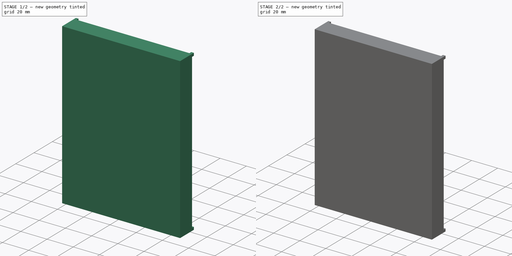
[diagram: build sequence overview — one tinted view per stage of 2, left to right]
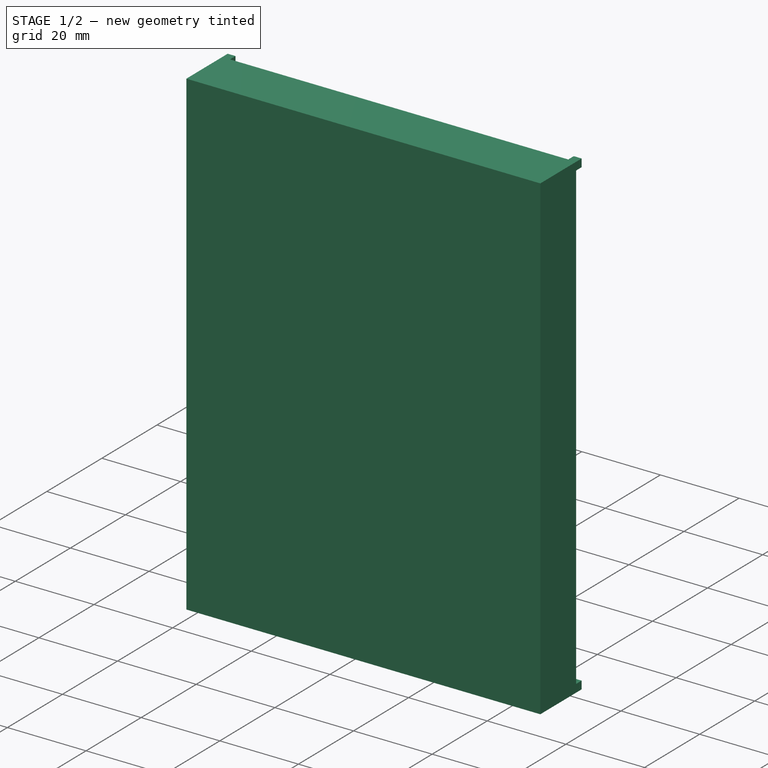
[diagram: stage 1 of 2 — iso view after this stage's code; geometry added in this stage tinted green]
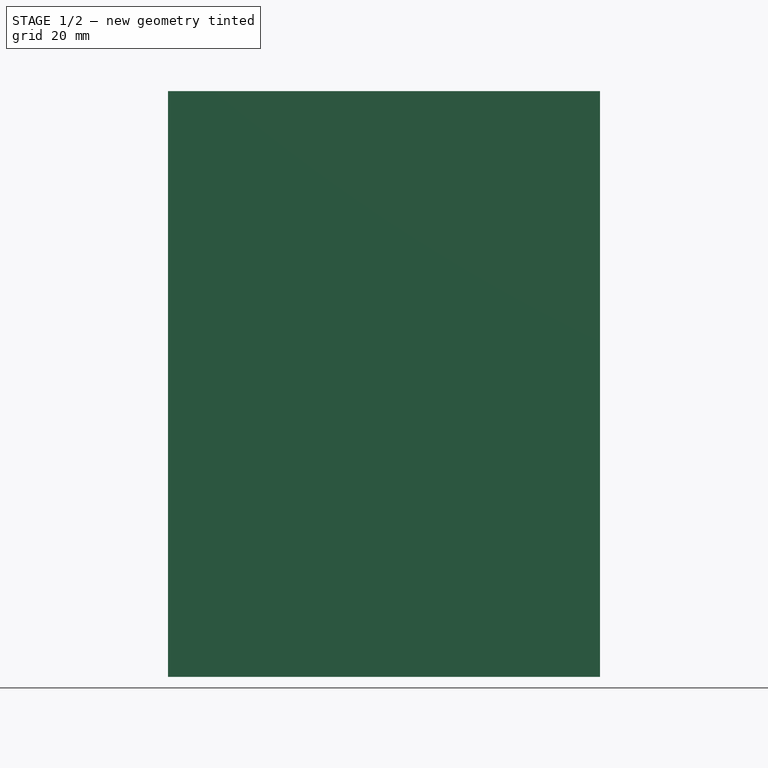
[diagram: stage 1 of 2 — front view after this stage's code; geometry added in this stage tinted green]
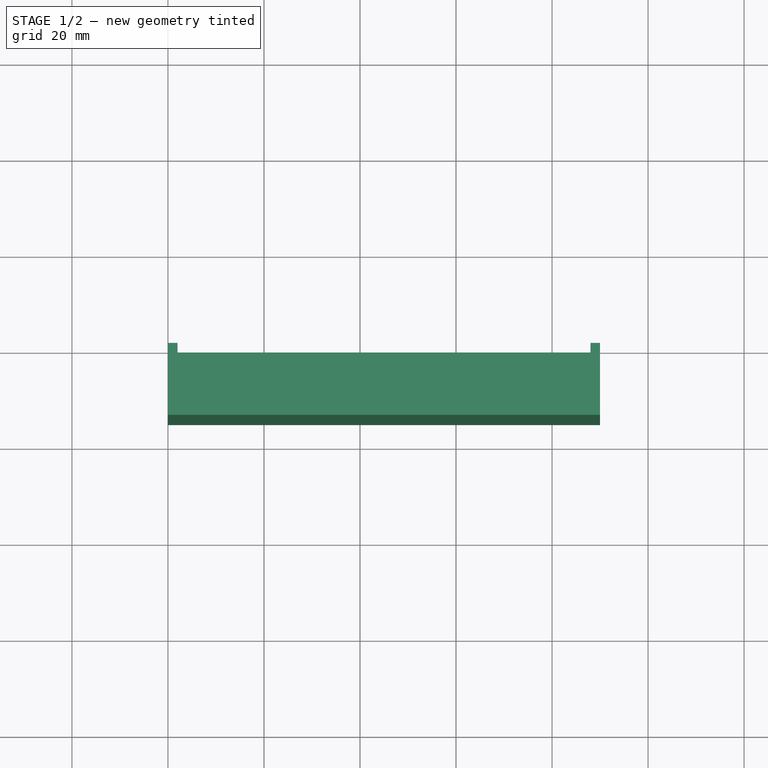
[diagram: stage 1 of 2 — top view after this stage's code; geometry added in this stage tinted green]
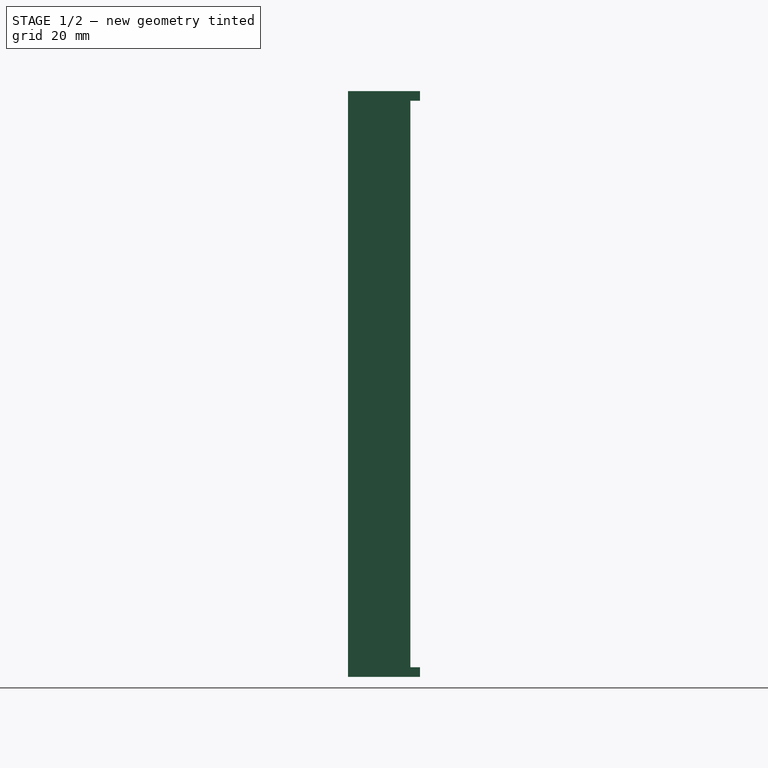
[diagram: stage 1 of 2 — right view after this stage's code; geometry added in this stage tinted green]
FCSTD DOCUMENT  (FreeCAD 1.0R39285 (Git))
Label: DisplaySingle
License: All rights reserved
LicenseURL: https://en.wikipedia.org/wiki/All_rights_reserved
objects: Sketcher::SketchObject×3, PartDesign::Pad×2, PartDesign::Pocket×1, PartDesign::Body×1
note: 16 computed .brp shape members not serialized (recipe doc carries the construction recipe); baked Part::Feature solids carry a one-line shape summary decoded from their .brp

FEATURE [Sketcher::SketchObject] Sketch
  ArcFitTolerance = 1e-06
  AttachmentSupport = -> [XZ_Plane]
  FullyConstrained = true
  MakeInternals = false
  MapMode = 5
  Placement = pos=(0,0,0) rot=(1,0,0;1.5708rad)
  sketch-geometry (4):
    g0: LineSegment StartX=0 StartY=0 StartZ=0 EndX=90 EndY=0 EndZ=0
    g1: LineSegment StartX=90 StartY=0 StartZ=0 EndX=90 EndY=122 EndZ=0
    g2: LineSegment StartX=90 StartY=122 StartZ=0 EndX=0 EndY=122 EndZ=0
    g3: LineSegment StartX=0 StartY=122 StartZ=0 EndX=0 EndY=0 EndZ=0
  constraints (11):
    c: Coincident(g0,g1)
    c: Coincident(g1,g2)
    c: Coincident(g2,g3)
    c: Coincident(g3,g0)
    c: Horizontal(g0)
    c: Horizontal(g2)
    c: Vertical(g1)
    c: Vertical(g3)
    c: Coincident(g0,g-1)
    c: DistanceX(g2,g2) = 90
    c: DistanceY(g1,g1) = 122
FEATURE [PartDesign::Pad] Pad
  Direction = (0,-1,2e-16)
  Length = 15
  Length2 = 10
  Placement = pos=(0,0,0) rot=(1,0,0;1.5708rad)
  Profile = -> Sketch
  ReferenceAxis = -> Sketch [N_Axis]
  Refine = true
  Suppressed = false
  Type = 0
FEATURE [Sketcher::SketchObject] Sketch001
  ArcFitTolerance = 1e-06
  AttachmentSupport = -> [Pad]
  ExternalGeometry = -> [Pad]
  FullyConstrained = true
  MakeInternals = false
  MapMode = 5
  Placement = pos=(0,1.35e-14,0) rot=(-1,0,0;1.5708rad)
  sketch-geometry (12):
    g0: LineSegment StartX=88 StartY=-122 StartZ=0 EndX=88 EndY=-120 EndZ=0
    g1: LineSegment StartX=88 StartY=-120 StartZ=0 EndX=90 EndY=-120 EndZ=0
    g2: LineSegment StartX=90 StartY=-120 StartZ=0 EndX=90 EndY=-2 EndZ=0
    g3: LineSegment StartX=90 StartY=-2 StartZ=0 EndX=88 EndY=-2 EndZ=0
    g4: LineSegment StartX=88 StartY=-2 StartZ=0 EndX=88 EndY=0 EndZ=0
    g5: LineSegment StartX=88 StartY=0 StartZ=0 EndX=2 EndY=0 EndZ=0
    g6: LineSegment StartX=2 StartY=0 StartZ=0 EndX=2 EndY=-2 EndZ=0
    g7: LineSegment StartX=2 StartY=-2 StartZ=0 EndX=0 EndY=-2 EndZ=0
    g8: LineSegment StartX=0 StartY=-2 StartZ=0 EndX=0 EndY=-120 EndZ=0
    g9: LineSegment StartX=0 StartY=-120 StartZ=0 EndX=2 EndY=-120 EndZ=0
    g10: LineSegment StartX=2 StartY=-120 StartZ=0 EndX=2 EndY=-122 EndZ=0
    g11: LineSegment StartX=2 StartY=-122 StartZ=0 EndX=88 EndY=-122 EndZ=0
  constraints (36):
    c: Coincident(g1,g0)
    c: Coincident(g2,g1)
    c: Vertical(g2)
    c: Coincident(g3,g2)
    c: Coincident(g4,g3)
    c: Coincident(g5,g4)
    c: Horizontal(g5)
    c: Coincident(g6,g5)
    c: Coincident(g7,g6)
    c: Coincident(g8,g7)
    c: PointOnObject(g8,g-2)
    c: Vertical(g8)
    c: Coincident(g9,g8)
    c: Horizontal(g9)
    c: Coincident(g10,g9)
    c: Vertical(g10)
    c: Coincident(g11,g10)
    c: Coincident(g11,g0)
    c: PointOnObject(g0,g-5)
    c: Horizontal(g11)
    c: Horizontal(g1)
    c: Horizontal(g3)
    c: Horizontal(g7)
    c: Vertical(g6)
    c: Vertical(g4)
    c: PointOnObject(g4,g-1)
    c: Equal(g10,g0)
    c: Vertical(g0)
    c: PointOnObject(g1,g-4)
    c: DistanceY(g6,g6) = 2
    c: Equal(g4,g6)
    c: Equal(g6,g7)
    c: Equal(g4,g3)
    c: Equal(g3,g1)
    c: Equal(g0,g1)
    c: Equal(g9,g7)
FEATURE [PartDesign::Pocket] Pocket
  BaseFeature = -> Pad
  Direction = (0,-1,-2e-16)
  Length = 2
  Length2 = 5
  Placement = pos=(0,0,0) rot=(1,0,0;1.5708rad)
  Profile = -> Sketch001
  ReferenceAxis = -> Sketch001 [N_Axis]
  Refine = true
  Suppressed = false
  Type = 0
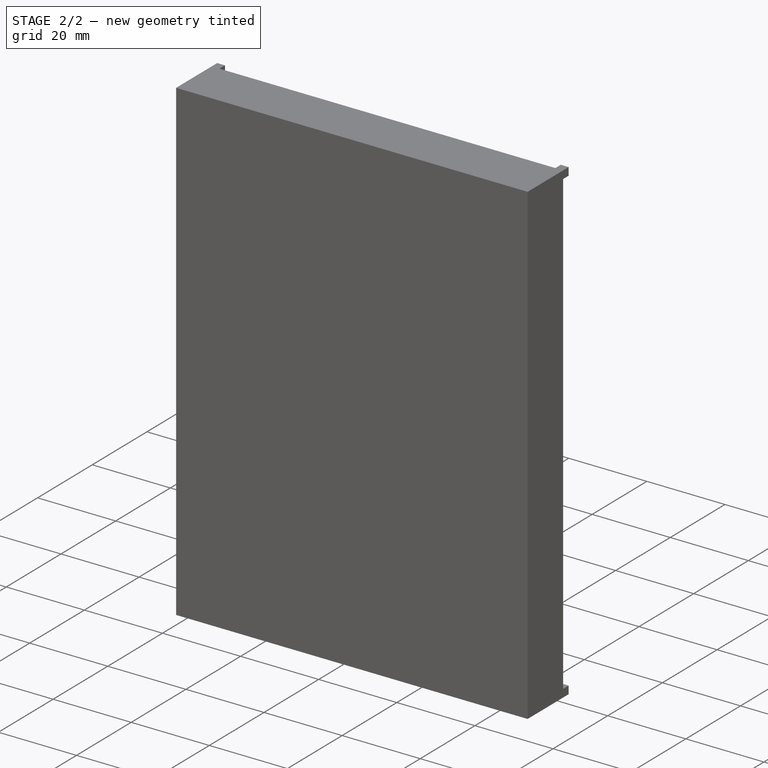
[diagram: stage 2 of 2 — iso view after this stage's code; geometry added in this stage tinted green]
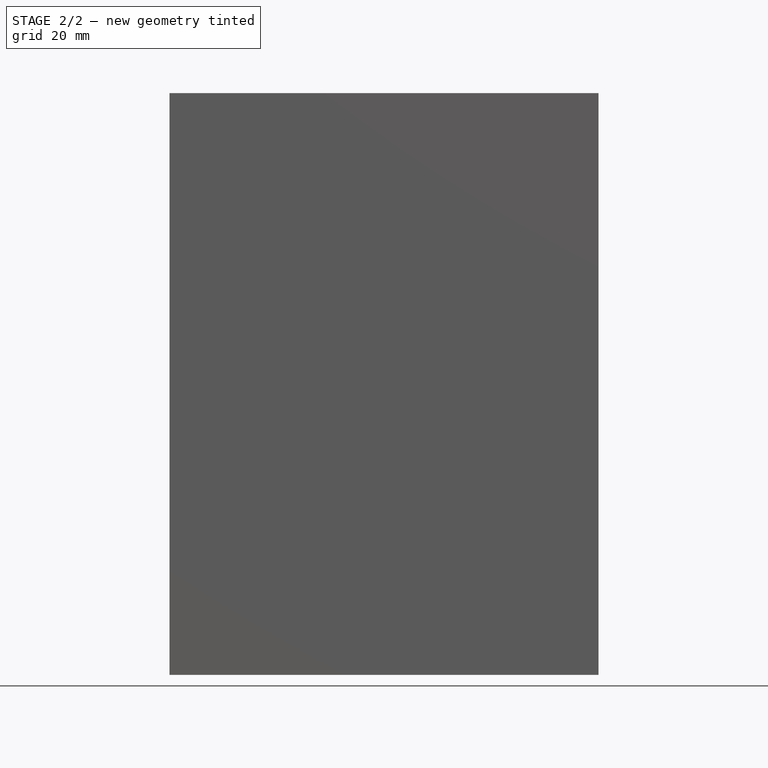
[diagram: stage 2 of 2 — front view after this stage's code; geometry added in this stage tinted green]
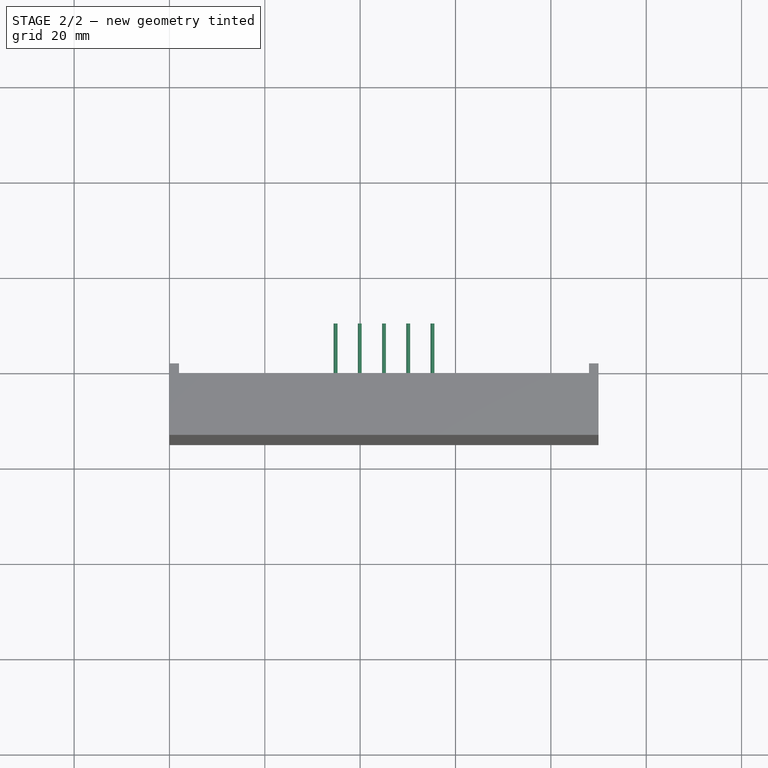
[diagram: stage 2 of 2 — top view after this stage's code; geometry added in this stage tinted green]
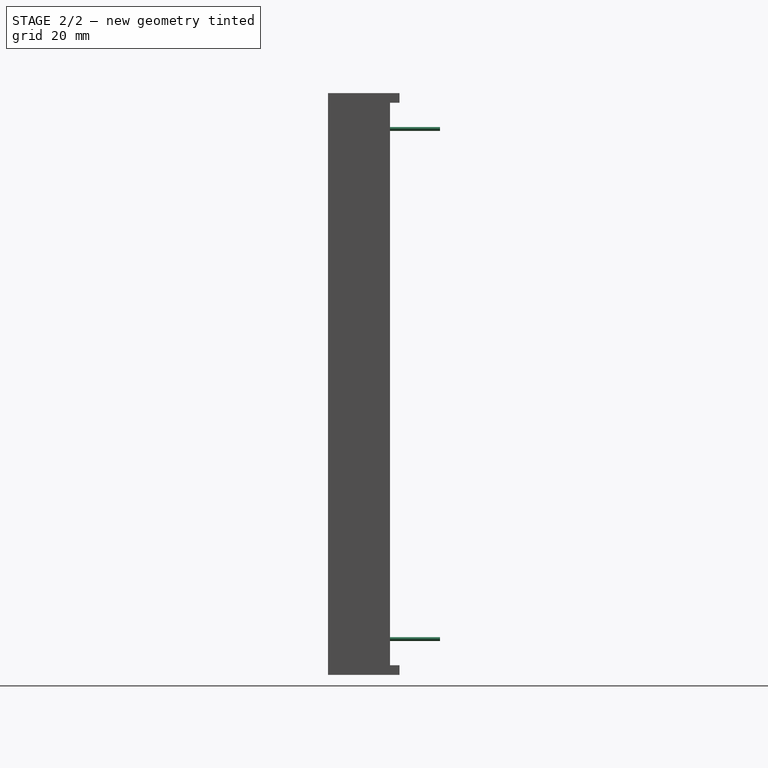
[diagram: stage 2 of 2 — right view after this stage's code; geometry added in this stage tinted green]
FEATURE [Sketcher::SketchObject] Sketch002
  ArcFitTolerance = 1e-06
  AttachmentSupport = -> [Pocket]
  ExternalGeometry = -> [Pocket]
  FullyConstrained = true
  MakeInternals = false
  MapMode = 5
  Placement = pos=(0,-2,0) rot=(-1,0,0;1.5708rad)
  sketch-geometry (23):
    g0: Circle CenterX=34.84 CenterY=-7.5 CenterZ=0 NormalX=0 NormalY=0 NormalZ=1 AngleXU=0 Radius=0.4
    g1: Circle CenterX=39.92 CenterY=-7.5 CenterZ=0 NormalX=0 NormalY=0 NormalZ=1 AngleXU=0 Radius=0.4
    g2: Circle CenterX=45 CenterY=-7.5 CenterZ=0 NormalX=0 NormalY=0 NormalZ=1 AngleXU=0 Radius=0.4
    g3: Circle CenterX=50.08 CenterY=-7.5 CenterZ=0 NormalX=0 NormalY=0 NormalZ=1 AngleXU=0 Radius=0.4
    g4: Circle CenterX=55.16 CenterY=-7.5 CenterZ=0 NormalX=0 NormalY=0 NormalZ=1 AngleXU=0 Radius=0.4
    g5: Circle CenterX=34.84 CenterY=-114.5 CenterZ=0 NormalX=0 NormalY=0 NormalZ=1 AngleXU=0 Radius=0.4
    g6: Circle CenterX=39.92 CenterY=-114.5 CenterZ=0 NormalX=0 NormalY=0 NormalZ=1 AngleXU=0 Radius=0.4
    g7: Circle CenterX=45 CenterY=-114.5 CenterZ=0 NormalX=0 NormalY=0 NormalZ=1 AngleXU=0 Radius=0.4
    g8: Circle CenterX=50.08 CenterY=-114.5 CenterZ=0 NormalX=0 NormalY=0 NormalZ=1 AngleXU=0 Radius=0.4
    g9: Circle CenterX=55.16 CenterY=-114.5 CenterZ=0 NormalX=0 NormalY=0 NormalZ=1 AngleXU=0 Radius=0.4
    g10: LineSegment [constr] StartX=34.84 StartY=-7.5 StartZ=0 EndX=34.84 EndY=-114.5 EndZ=0
    g11: LineSegment [constr] StartX=55.16 StartY=-7.5 StartZ=0 EndX=55.16 EndY=-114.5 EndZ=0
    g12: LineSegment [constr] StartX=55.16 StartY=-114.5 StartZ=0 EndX=50.08 EndY=-114.5 EndZ=0
    g13: LineSegment [constr] StartX=50.08 StartY=-114.5 StartZ=0 EndX=45 EndY=-114.5 EndZ=0
    g14: LineSegment [constr] StartX=45 StartY=-114.5 StartZ=0 EndX=39.92 EndY=-114.5 EndZ=0
    g15: LineSegment [constr] StartX=39.92 StartY=-114.5 StartZ=0 EndX=34.84 EndY=-114.5 EndZ=0
    g16: LineSegment [constr] StartX=55.16 StartY=-7.5 StartZ=0 EndX=50.08 EndY=-7.5 EndZ=0
    g17: LineSegment [constr] StartX=50.08 StartY=-7.5 StartZ=0 EndX=45 EndY=-7.5 EndZ=0
    g18: LineSegment [constr] StartX=45 StartY=-7.5 StartZ=0 EndX=39.92 EndY=-7.5 EndZ=0
    g19: LineSegment [constr] StartX=39.92 StartY=-7.5 StartZ=0 EndX=34.84 EndY=-7.5 EndZ=0
    g20: LineSegment [constr] StartX=90 StartY=-122 StartZ=0 EndX=55.16 EndY=-114.5 EndZ=0
    g21: LineSegment [constr] StartX=0 StartY=0 StartZ=0 EndX=34.84 EndY=-7.5 EndZ=0
    g22: LineSegment [constr] StartX=0 StartY=-122 StartZ=0 EndX=34.84 EndY=-114.5 EndZ=0
  constraints (57):
    c: Coincident(g16,g4)
    c: Coincident(g19,g0)
    c: Coincident(g12,g9)
    c: Coincident(g15,g5)
    c: Equal(g7,g5)
    c: Equal(g5,g6)
    c: Equal(g6,g8)
    c: Equal(g8,g9)
    c: Equal(g9,g4)
    c: Equal(g4,g3)
    c: Equal(g3,g2)
    c: Equal(g2,g1)
    c: Equal(g1,g0)
    c: Diameter(g4) = 0.8
    c: Coincident(g10,g0)
    c: Coincident(g10,g5)
    c: Vertical(g10)
    c: DistanceY(g10,g10) = 107
    c: Coincident(g11,g4)
    c: Coincident(g11,g9)
    c: Vertical(g11)
    c: Coincident(g12,g13)
    c: Horizontal(g12)
    c: PointOnObject(g6,g12)
    c: PointOnObject(g7,g12)
    c: Coincident(g13,g14)
    c: Coincident(g14,g15)
    c: Horizontal(g15)
    c: Coincident(g14,g6)
    c: Coincident(g7,g13)
    c: Coincident(g8,g12)
    c: Equal(g12,g13)
    c: Equal(g13,g14)
    c: Equal(g14,g15)
    c: Coincident(g16,g17)
    c: Horizontal(g16)
    c: PointOnObject(g1,g16)
    c: PointOnObject(g2,g16)
    c: Coincident(g17,g18)
    c: Coincident(g18,g19)
    c: Horizontal(g19)
    c: Coincident(g1,g18)
    c: Coincident(g2,g17)
    c: Coincident(g3,g16)
    c: Equal(g16,g17)
    c: Equal(g17,g18)
    c: Equal(g18,g19)
    c: Coincident(g20,g-3)
    c: Coincident(g20,g9)
    c: Coincident(g21,g-1)
    c: Coincident(g21,g0)
    c: Equal(g21,g20)
    c: Coincident(g22,g-4)
    c: Coincident(g22,g5)
    c: Equal(g22,g20)
    c: DistanceX(g0,g4) = 20.32
    c: DistanceX(g16,g16) = 5.08
FEATURE [PartDesign::Pad] Pad001
  BaseFeature = -> Pocket
  Direction = (0,1,2e-16)
  Length = 10.5
  Length2 = 10
  Placement = pos=(0,0,0) rot=(1,0,0;1.5708rad)
  Profile = -> Sketch002
  ReferenceAxis = -> Sketch002 [N_Axis]
  Refine = true
  Suppressed = false
  Type = 0
FEATURE [PartDesign::Body] Body
  AllowCompound = false
  Group = -> [Sketch,Pad,Sketch001,Pocket,Sketch002,Pad001]
  Origin = -> Origin
  Tip = -> Pad001
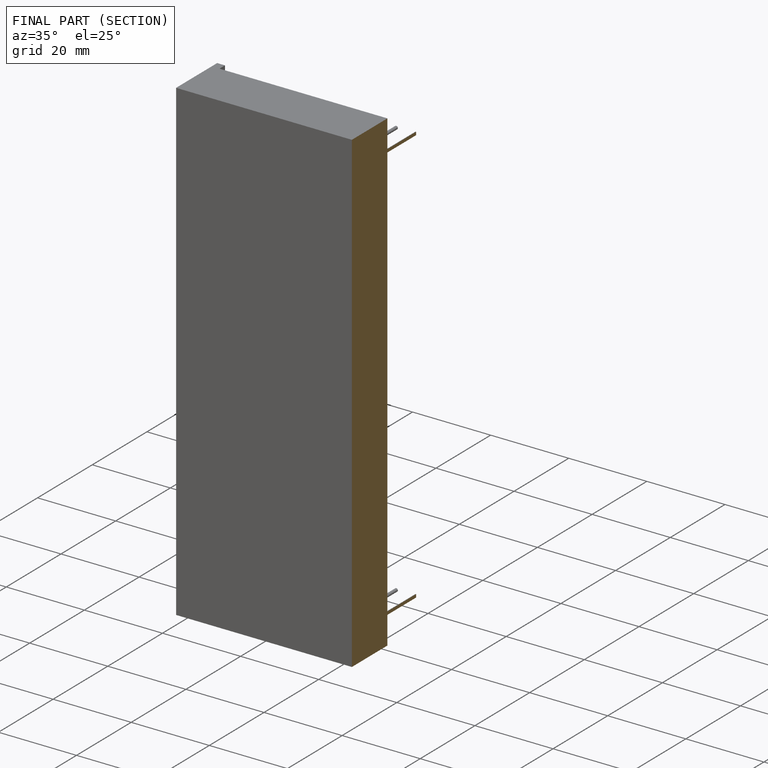
[diagram: finished part — half-section view (interior)]
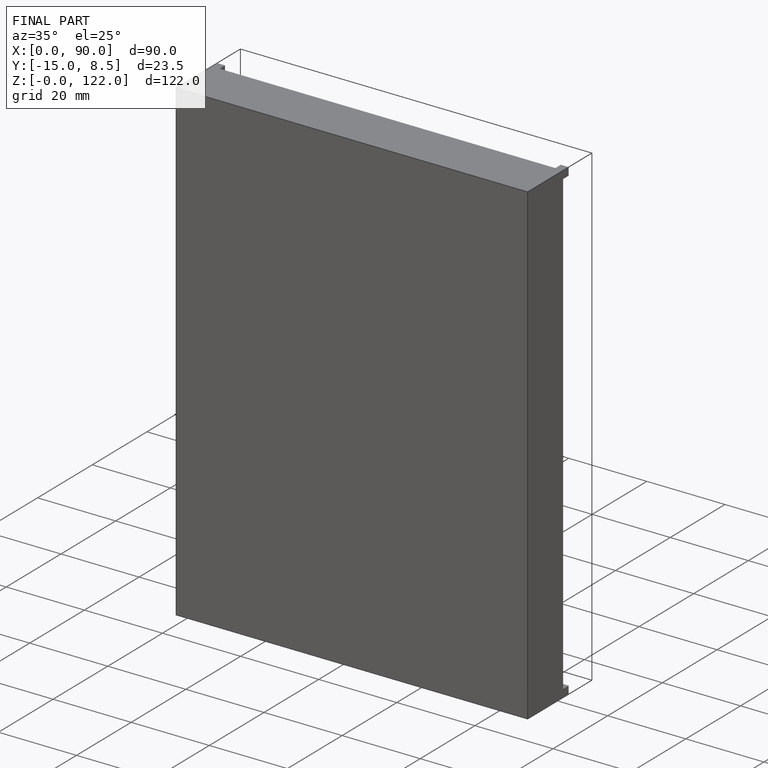
[diagram: finished part — iso view with bounding-box wireframe]
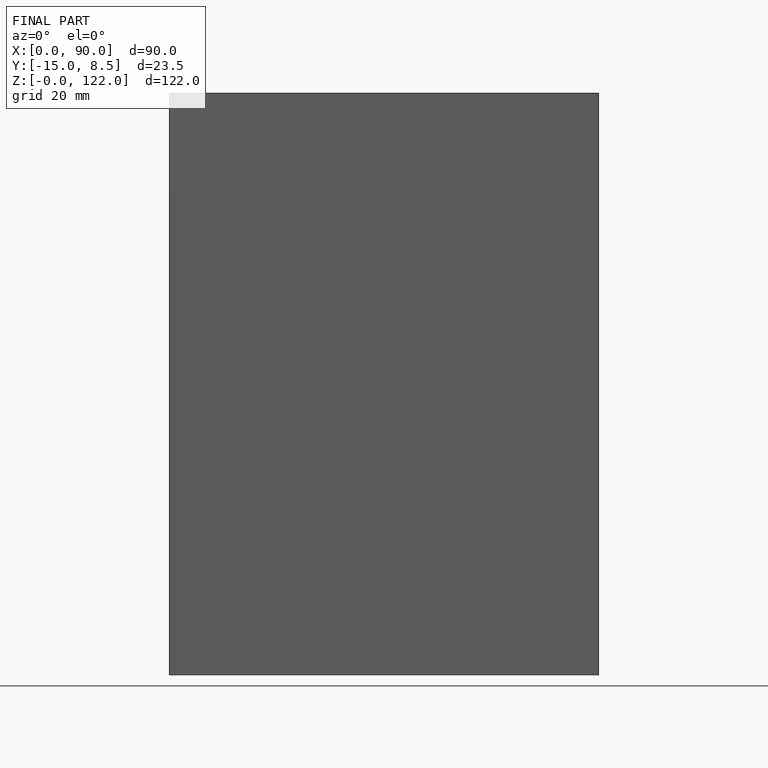
[diagram: finished part — front view with bounding-box wireframe]
